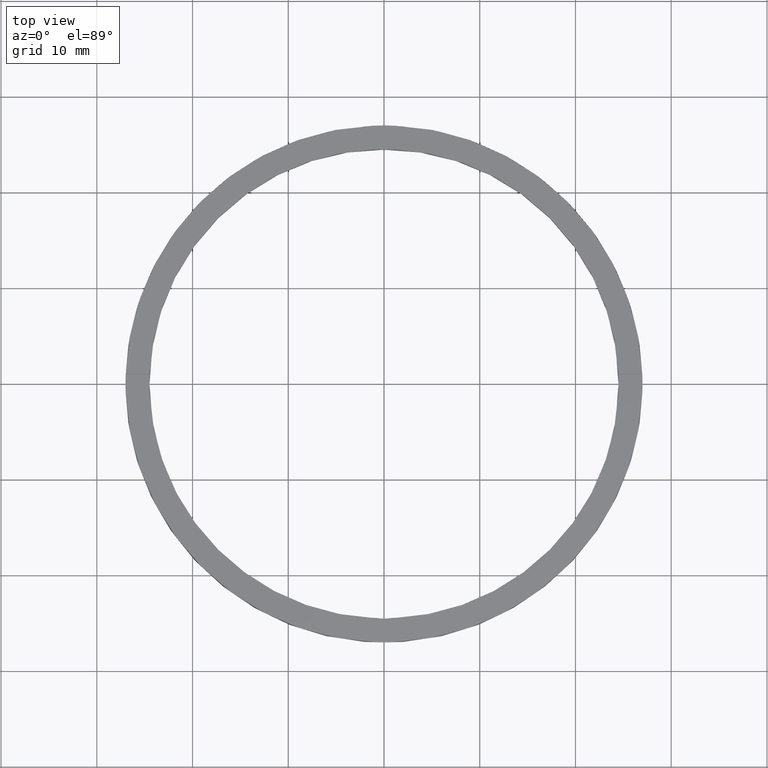
[diagram: clean part render]
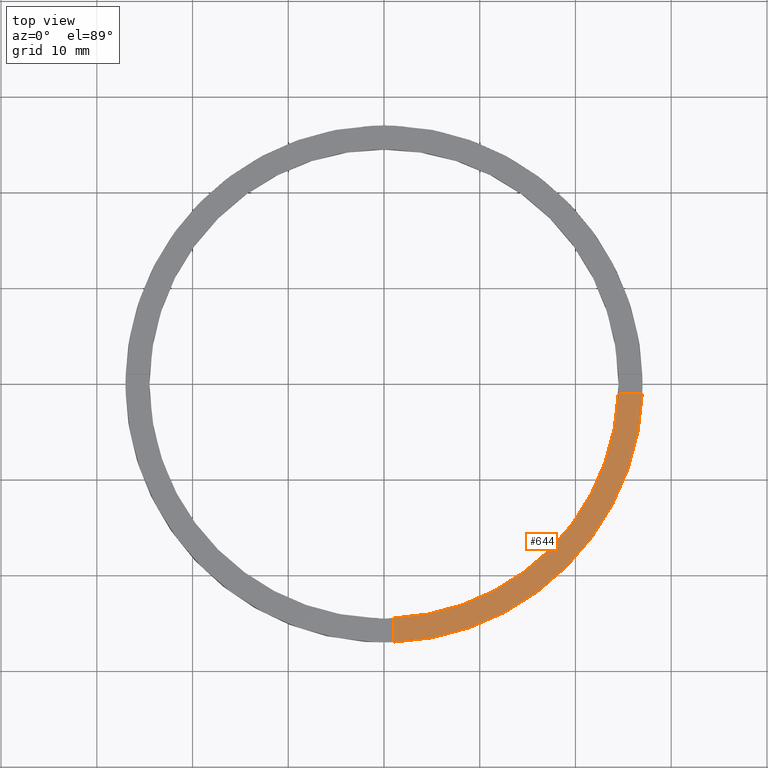
[diagram: same view with one face highlighted and labeled with its STEP entity id]
A machine part, top view. The second image highlights one B-rep face of the part: STEP entity #644.
In plain terms, the highlighted planar face has unit normal (0, 0, 1).
Its self-contained STEP definition (entity closure, byte-faithful):
#64 = DIRECTION ( 'NONE',  ( 1.000000000000000000, 0.000000000000000000, 0.000000000000000000 ) ) ;
#113 = CARTESIAN_POINT ( 'NONE',  ( 16.99999999999999645, -1.000000000000157652, 2.500000000000000000 ) ) ;
#157 = ORIENTED_EDGE ( 'NONE', *, *, #432, .F. ) ;
#175 = CARTESIAN_POINT ( 'NONE',  ( 0.9999999999998397948, -24.47958332978729956, 2.500000000000000000 ) ) ;
#186 = DIRECTION ( 'NONE',  ( 1.000000000000000000, 0.000000000000000000, -0.000000000000000000 ) ) ;
#193 = CARTESIAN_POINT ( 'NONE',  ( 0.9999999999998400169, -26.98147512646408686, 2.500000000000000000 ) ) ;
#207 = ORIENTED_EDGE ( 'NONE', *, *, #565, .F. ) ;
#266 = EDGE_CURVE ( 'NONE', #763, #520, #662, .T. ) ;
#283 = VERTEX_POINT ( 'NONE', #175 ) ;
#302 = AXIS2_PLACEMENT_3D ( 'NONE', #782, #605, #64 ) ;
#319 = CARTESIAN_POINT ( 'NONE',  ( 0.9999999999998386846, -17.00000000000018119, 2.500000000000000000 ) ) ;
#328 = DIRECTION ( 'NONE',  ( 1.000000000000000000, 4.336808689942018352E-17, 0.000000000000000000 ) ) ;
#366 = AXIS2_PLACEMENT_3D ( 'NONE', #498, #414, #720 ) ;
#384 = CARTESIAN_POINT ( 'NONE',  ( 0.000000000000000000, 0.000000000000000000, 2.500000000000000000 ) ) ;
#414 = DIRECTION ( 'NONE',  ( 0.000000000000000000, 0.000000000000000000, 1.000000000000000000 ) ) ;
#428 = ORIENTED_EDGE ( 'NONE', *, *, #266, .T. ) ;
#432 = EDGE_CURVE ( 'NONE', #544, #520, #463, .T. ) ;
#459 = VECTOR ( 'NONE', #557, 1000.000000000000000 ) ;
#463 = LINE ( 'NONE', #113, #734 ) ;
#498 = CARTESIAN_POINT ( 'NONE',  ( 0.000000000000000000, 0.000000000000000000, 2.500000000000000000 ) ) ;
#520 = VERTEX_POINT ( 'NONE', #608 ) ;
#528 = EDGE_CURVE ( 'NONE', #763, #283, #727, .T. ) ;
#544 = VERTEX_POINT ( 'NONE', #550 ) ;
#550 = CARTESIAN_POINT ( 'NONE',  ( 24.47958332978728890, -1.000000000000157208, 2.500000000000000000 ) ) ;
#557 = DIRECTION ( 'NONE',  ( -1.301042606982605567E-16, 1.000000000000000000, -0.000000000000000000 ) ) ;
#565 = EDGE_CURVE ( 'NONE', #283, #544, #704, .T. ) ;
#605 = DIRECTION ( 'NONE',  ( 0.000000000000000000, 0.000000000000000000, 1.000000000000000000 ) ) ;
#608 = CARTESIAN_POINT ( 'NONE',  ( 26.98147512646407620, -1.000000000000157208, 2.500000000000000000 ) ) ;
#644 = ADVANCED_FACE ( 'NONE', ( #718 ), #701, .T. ) ;
#662 = CIRCLE ( 'NONE', #366, 27.00000000000000000 ) ;
#691 = AXIS2_PLACEMENT_3D ( 'NONE', #384, #739, #186 ) ;
#701 = PLANE ( 'NONE',  #691 ) ;
#704 = CIRCLE ( 'NONE', #302, 24.50000000000000000 ) ;
#718 = FACE_OUTER_BOUND ( 'NONE', #783, .T. ) ;
#720 = DIRECTION ( 'NONE',  ( 1.000000000000000000, 0.000000000000000000, 0.000000000000000000 ) ) ;
#727 = LINE ( 'NONE', #319, #459 ) ;
#734 = VECTOR ( 'NONE', #328, 1000.000000000000000 ) ;
#735 = ORIENTED_EDGE ( 'NONE', *, *, #528, .F. ) ;
#739 = DIRECTION ( 'NONE',  ( 0.000000000000000000, 0.000000000000000000, 1.000000000000000000 ) ) ;
#763 = VERTEX_POINT ( 'NONE', #193 ) ;
#782 = CARTESIAN_POINT ( 'NONE',  ( 0.000000000000000000, 0.000000000000000000, 2.500000000000000000 ) ) ;
#783 = EDGE_LOOP ( 'NONE', ( #157, #207, #735, #428 ) ) ;